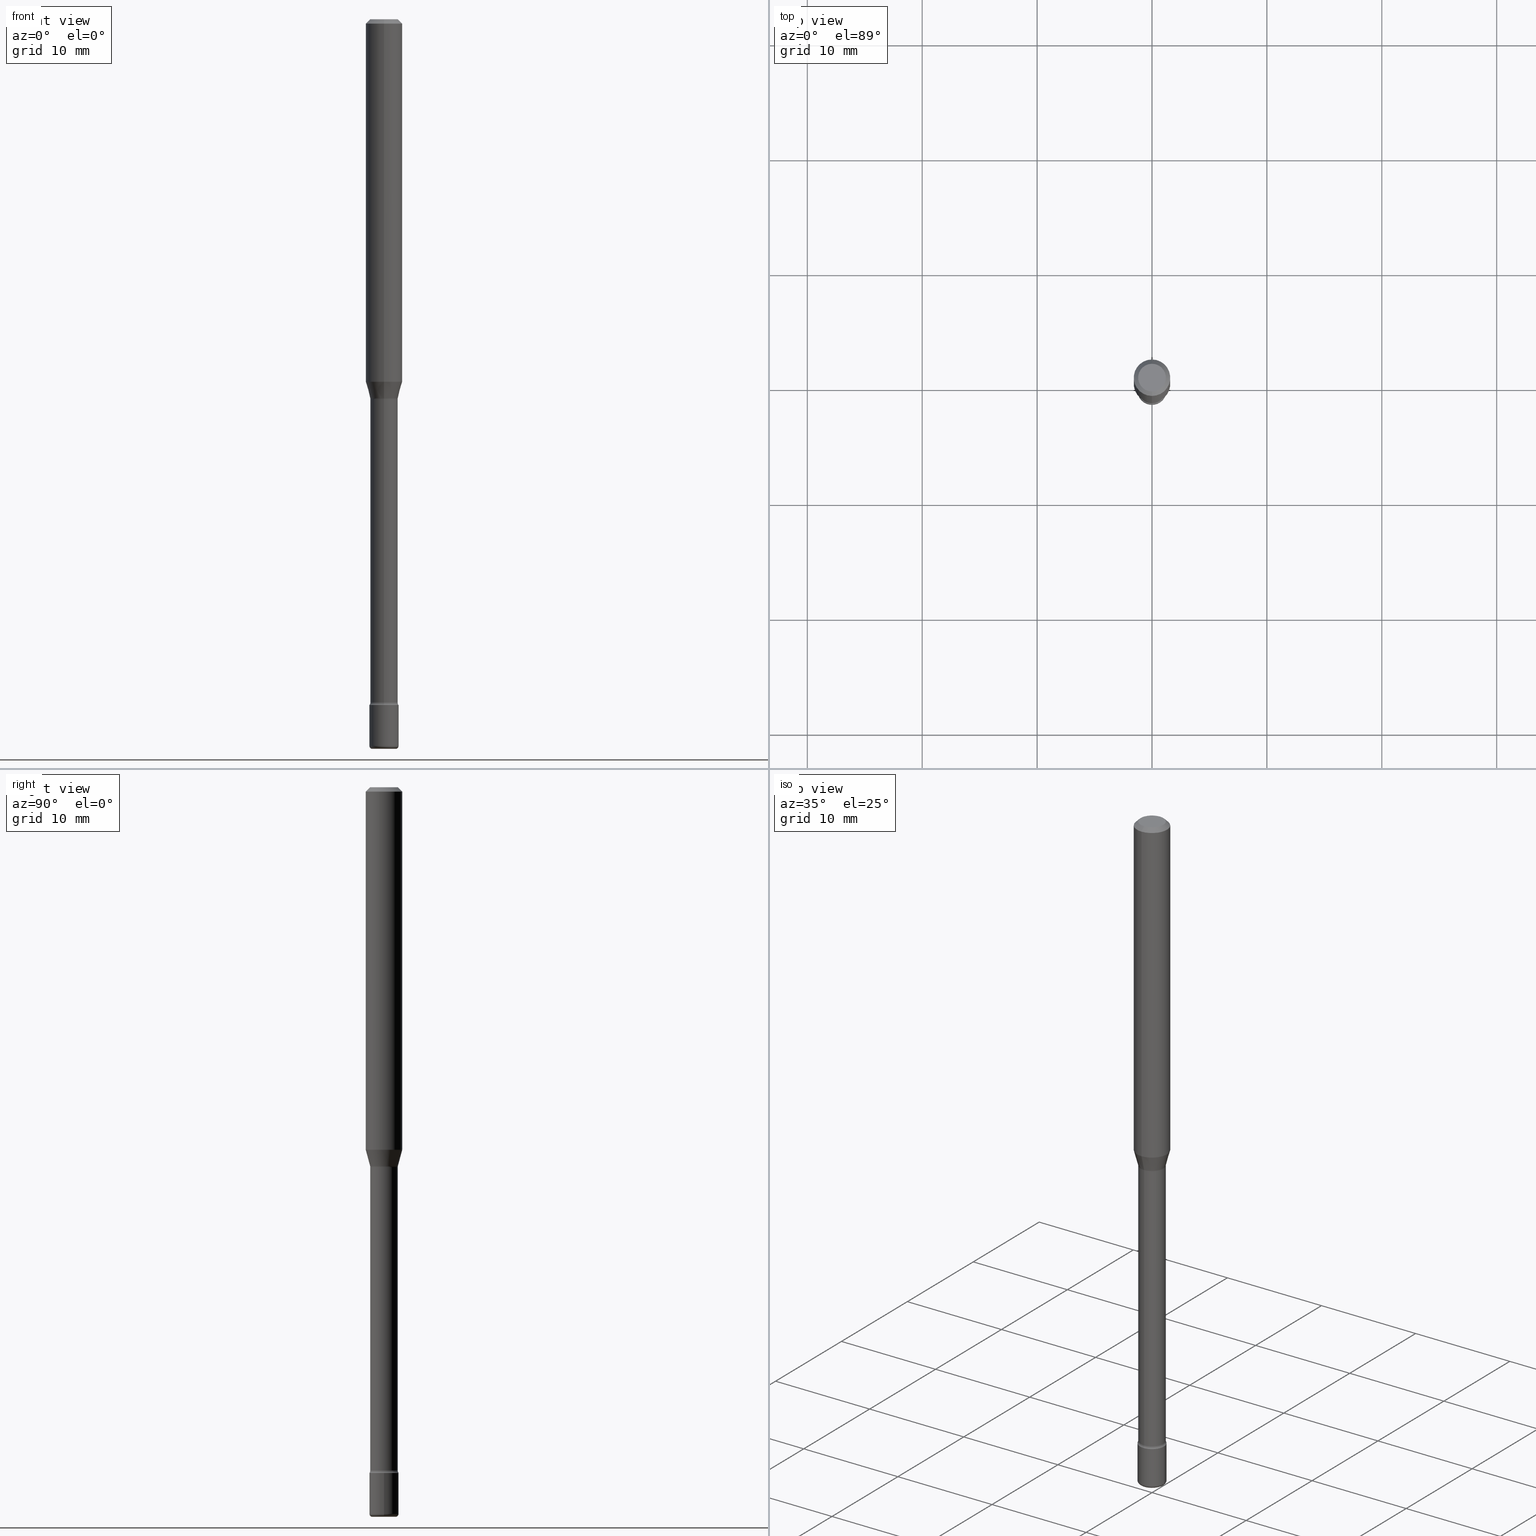
[diagram: canonical four-view strip — front | top / right | iso, engineering-drawing reading convention]
A machine part, canonical four-view strip (front | top / right | iso — engineering-drawing reading convention). The complete STEP part file that produces these views, byte-faithful:
ISO-10303-21;
HEADER;
FILE_DESCRIPTION (( 'STEP AP203' ),
    '1' );
FILE_NAME ('08964.STEP',
    '2024-03-06T20:12:48',
    ( '' ),
    ( '' ),
    'SwSTEP 2.0',
    'SolidWorks 2023',
    '' );
FILE_SCHEMA (( 'CONFIG_CONTROL_DESIGN' ));
ENDSEC;

DATA;
#1 = AXIS2_PLACEMENT_3D ( 'NONE', #22, #70, #242 ) ;
#2 = TOROIDAL_SURFACE ( 'NONE', #547, 0.04000000000000000083, 0.01000000000000009041 ) ;
#3 = DIRECTION ( 'NONE',  ( -6.982962677686265922E-15, -1.000000000000000000, 3.491458649801748196E-15 ) ) ;
#4 = DIRECTION ( 'NONE',  ( 1.000000000000000000, -6.982962677686259611E-15, 0.000000000000000000 ) ) ;
#5 = VERTEX_POINT ( 'NONE', #64 ) ;
#6 = DIRECTION ( 'NONE',  ( -6.982962677686265133E-15, -1.000000000000000000, 5.463695987328526437E-15 ) ) ;
#7 = EDGE_LOOP ( 'NONE', ( #314, #561 ) ) ;
#8 = AXIS2_PLACEMENT_3D ( 'NONE', #29, #160, #248 ) ;
#9 = CARTESIAN_POINT ( 'NONE',  ( 6.089217327400989947E-29, -8.693788533719431716E-15, -2.489999999999999769 ) ) ;
#10 = ORIENTED_EDGE ( 'NONE', *, *, #278, .T. ) ;
#11 = PERSON_AND_ORGANIZATION ( #479, #515 ) ;
#12 = EDGE_CURVE ( 'NONE', #382, #5, #451, .T. ) ;
#13 = DIRECTION ( 'NONE',  ( -2.445468806185136877E-29, 3.491481338843145188E-15, 1.000000000000000000 ) ) ;
#14 = ORIENTED_EDGE ( 'NONE', *, *, #40, .T. ) ;
#15 = DIRECTION ( 'NONE',  ( -2.445468806185136597E-29, 3.491481338843145583E-15, 1.000000000000000000 ) ) ;
#16 = APPROVAL ( #405, 'UNSPECIFIED' ) ;
#17 = EDGE_LOOP ( 'NONE', ( #354, #456, #417, #144 ) ) ;
#18 = ORIENTED_EDGE ( 'NONE', *, *, #568, .T. ) ;
#19 = CARTESIAN_POINT ( 'NONE',  ( 3.668226974787102280E-31, -5.237187974702632377E-17, -0.01500000000000002720 ) ) ;
#20 = VECTOR ( 'NONE', #24, 39.37007874015748143 ) ;
#21 = ORIENTED_EDGE ( 'NONE', *, *, #260, .T. ) ;
#22 = CARTESIAN_POINT ( 'NONE',  ( 3.183959357244965460E-29, -4.545791133514316808E-15, -1.301974787463811456 ) ) ;
#23 = CARTESIAN_POINT ( 'NONE',  ( -1.169113584055446105E-44, 1.669184350826100908E-30, 4.780733988912460139E-16 ) ) ;
#24 = DIRECTION ( 'NONE',  ( -2.445484649858063983E-29, 3.491458649801747802E-15, 1.000000000000000000 ) ) ;
#25 = DIRECTION ( 'NONE',  ( -2.445484649858063703E-29, 3.491458649801748196E-15, 1.000000000000000000 ) ) ;
#26 = PERSON_AND_ORGANIZATION ( #479, #515 ) ;
#27 = ORIENTED_EDGE ( 'NONE', *, *, #483, .T. ) ;
#28 = DIRECTION ( 'NONE',  ( -2.445484649858063703E-29, 3.491458649801748196E-15, 1.000000000000000000 ) ) ;
#29 = CARTESIAN_POINT ( 'NONE',  ( 3.183959357244965460E-29, -4.545791133514316808E-15, -1.301974787463811456 ) ) ;
#30 = AXIS2_PLACEMENT_3D ( 'NONE', #293, #28, #468 ) ;
#31 = LINE ( 'NONE', #165, #441 ) ;
#32 = CARTESIAN_POINT ( 'NONE',  ( -4.329436860164915685E-16, -0.06200000000000822215, -2.340999999999999748 ) ) ;
#33 = CYLINDRICAL_SURFACE ( 'NONE', #332, 0.06250000000000000000 ) ;
#34 = ADVANCED_FACE ( 'NONE', ( #239 ), #474, .T. ) ;
#35 = MECHANICAL_CONTEXT ( 'NONE', #262, 'mechanical' ) ;
#36 = DIRECTION ( 'NONE',  ( -6.982962677686265922E-15, -1.000000000000000000, 3.483106191921935554E-15 ) ) ;
#37 = AXIS2_PLACEMENT_3D ( 'NONE', #316, #447, #232 ) ;
#38 = AXIS2_PLACEMENT_3D ( 'NONE', #395, #134, #346 ) ;
#39 = CARTESIAN_POINT ( 'NONE',  ( 3.316907271900975110E-16, 0.04749999999999998668, 5.964728111673710049E-17 ) ) ;
#40 = EDGE_CURVE ( 'NONE', #193, #163, #79, .T. ) ;
#41 = DIRECTION ( 'NONE',  ( -6.982962677686265133E-15, -1.000000000000000000, 5.749913744050247464E-15 ) ) ;
#42 = DIRECTION ( 'NONE',  ( 6.982962677686265922E-15, 1.000000000000000000, -3.491458649801747802E-15 ) ) ;
#43 = PRODUCT ( '08964', '08964', '', ( #35 ) ) ;
#44 = AXIS2_PLACEMENT_3D ( 'NONE', #287, #169, #430 ) ;
#45 = DIRECTION ( 'NONE',  ( -2.445484649858063703E-29, 3.491458649801748196E-15, 1.000000000000000000 ) ) ;
#46 = EDGE_CURVE ( 'NONE', #504, #235, #93, .T. ) ;
#47 = EDGE_LOOP ( 'NONE', ( #458, #234 ) ) ;
#48 = DIMENSIONAL_EXPONENTS ( 1.000000000000000000, 0.000000000000000000, 0.000000000000000000, 0.000000000000000000, 0.000000000000000000, 0.000000000000000000, 0.000000000000000000 ) ;
#49 = EDGE_LOOP ( 'NONE', ( #69, #536 ) ) ;
#50 = PLANE ( 'NONE',  #159 ) ;
#51 = VERTEX_POINT ( 'NONE', #338 ) ;
#52 = EDGE_CURVE ( 'NONE', #235, #504, #135, .T. ) ;
#53 = AXIS2_PLACEMENT_3D ( 'NONE', #166, #117, #67 ) ;
#54 = CONICAL_SURFACE ( 'NONE', #188, 0.04751111260566398542, 0.2617993877991498519 ) ;
#55 = FACE_OUTER_BOUND ( 'NONE', #100, .T. ) ;
#56 = ORIENTED_EDGE ( 'NONE', *, *, #442, .F. ) ;
#57 = EDGE_CURVE ( 'NONE', #51, #317, #366, .T. ) ;
#58 = PERSON_AND_ORGANIZATION ( #479, #515 ) ;
#59 = ORIENTED_EDGE ( 'NONE', *, *, #272, .T. ) ;
#60 = ORIENTED_EDGE ( 'NONE', *, *, #568, .F. ) ;
#61 = PERSON_AND_ORGANIZATION_ROLE ( 'classification_officer' ) ;
#62 = DIRECTION ( 'NONE',  ( 6.982962677686265922E-15, 1.000000000000000000, -3.483106191921935554E-15 ) ) ;
#63 = ORIENTED_EDGE ( 'NONE', *, *, #355, .T. ) ;
#64 = CARTESIAN_POINT ( 'NONE',  ( 0.05000000000000004441, -9.042936667603745051E-15, -2.489999999999999769 ) ) ;
#65 = SECURITY_CLASSIFICATION_LEVEL ( 'unclassified' ) ;
#66 = AXIS2_PLACEMENT_3D ( 'NONE', #519, #158, #413 ) ;
#67 = DIRECTION ( 'NONE',  ( -6.982962677686265922E-15, -1.000000000000000000, 3.491458649801748196E-15 ) ) ;
#68 = LOCAL_TIME ( 15, 12, 48.00000000000000000, #132 ) ;
#69 = ORIENTED_EDGE ( 'NONE', *, *, #260, .F. ) ;
#70 = DIRECTION ( 'NONE',  ( -2.445484649858063703E-29, 3.491458649801748196E-15, 1.000000000000000000 ) ) ;
#71 = CALENDAR_DATE ( 2024, 6, 3 ) ;
#72 = FACE_OUTER_BOUND ( 'NONE', #113, .T. ) ;
#73 = ORIENTED_EDGE ( 'NONE', *, *, #518, .F. ) ;
#74 = CARTESIAN_POINT ( 'NONE',  ( 5.724879565317726717E-29, -8.173504699185892323E-15, -2.340999999999999748 ) ) ;
#75 = DIRECTION ( 'NONE',  ( -2.445484649858063703E-29, 3.491458649801748196E-15, 1.000000000000000000 ) ) ;
#76 = ORIENTED_EDGE ( 'NONE', *, *, #552, .F. ) ;
#77 = CARTESIAN_POINT ( 'NONE',  ( 3.037666613898282512E-29, -4.336926578101692093E-15, -1.242153212482682845 ) ) ;
#78 = DIRECTION ( 'NONE',  ( 1.000000000000000000, -6.982962677686259611E-15, 0.000000000000000000 ) ) ;
#79 = CIRCLE ( 'NONE', #1, 0.04700000000000001399 ) ;
#80 = CIRCLE ( 'NONE', #8, 0.04700000000000001399 ) ;
#81 = CC_DESIGN_SECURITY_CLASSIFICATION ( #320, ( #142 ) ) ;
#82 = LINE ( 'NONE', #420, #319 ) ;
#83 = PERSON_AND_ORGANIZATION ( #479, #515 ) ;
#84 = DIRECTION ( 'NONE',  ( 7.105427357601001859E-15, 1.000000000000000000, 0.000000000000000000 ) ) ;
#85 = AXIS2_PLACEMENT_3D ( 'NONE', #403, #275, #325 ) ;
#86 = CC_DESIGN_DATE_AND_TIME_ASSIGNMENT ( #529, #301, ( #208 ) ) ;
#87 = VECTOR ( 'NONE', #157, 39.37007874015748143 ) ;
#88 = CARTESIAN_POINT ( 'NONE',  ( 3.339550858072470388E-16, 0.04700000000000000705, 3.139748423505638775E-16 ) ) ;
#89 = ORIENTED_EDGE ( 'NONE', *, *, #57, .F. ) ;
#90 = EDGE_CURVE ( 'NONE', #504, #265, #121, .T. ) ;
#91 = PLANE ( 'NONE',  #380 ) ;
#92 = MANIFOLD_SOLID_BREP ( 'Body-Move/Copy2[2]', #251 ) ;
#93 = CIRCLE ( 'NONE', #393, 0.06250000000000000000 ) ;
#94 = AXIS2_PLACEMENT_3D ( 'NONE', #539, #544, #151 ) ;
#95 = CIRCLE ( 'NONE', #38, 0.05000000000000000278 ) ;
#96 = EDGE_CURVE ( 'NONE', #140, #508, #566, .T. ) ;
#97 = ORIENTED_EDGE ( 'NONE', *, *, #180, .F. ) ;
#98 = FACE_OUTER_BOUND ( 'NONE', #548, .T. ) ;
#99 = EDGE_CURVE ( 'NONE', #235, #103, #327, .T. ) ;
#100 = EDGE_LOOP ( 'NONE', ( #311, #73, #351, #467 ) ) ;
#101 = APPROVAL_DATE_TIME ( #494, #189 ) ;
#102 = CYLINDRICAL_SURFACE ( 'NONE', #305, 0.04700000000000000705 ) ;
#103 = VERTEX_POINT ( 'NONE', #370 ) ;
#104 = CC_DESIGN_PERSON_AND_ORGANIZATION_ASSIGNMENT ( #388, #343, ( #208 ) ) ;
#105 = AXIS2_PLACEMENT_3D ( 'NONE', #9, #15, #194 ) ;
#106 = CIRCLE ( 'NONE', #452, 0.01500000000000004455 ) ;
#107 = FACE_OUTER_BOUND ( 'NONE', #542, .T. ) ;
#108 = EDGE_LOOP ( 'NONE', ( #112, #496, #444, #182 ) ) ;
#109 = EDGE_LOOP ( 'NONE', ( #288, #18, #505, #556 ) ) ;
#110 = PERSON_AND_ORGANIZATION_ROLE ( 'creator' ) ;
#111 = DIRECTION ( 'NONE',  ( -6.982962677686265922E-15, -1.000000000000000000, 3.491458649801748196E-15 ) ) ;
#112 = ORIENTED_EDGE ( 'NONE', *, *, #386, .F. ) ;
#113 = EDGE_LOOP ( 'NONE', ( #517, #546, #186, #408 ) ) ;
#114 = CARTESIAN_POINT ( 'NONE',  ( 0.05000000000000000278, -8.554129280165706697E-15, -2.350000000000000089 ) ) ;
#115 = EDGE_LOOP ( 'NONE', ( #56, #10, #150, #229 ) ) ;
#116 = CARTESIAN_POINT ( 'NONE',  ( 5.746851694535070554E-29, -8.204981146281391784E-15, -2.350000000000000089 ) ) ;
#117 = DIRECTION ( 'NONE',  ( -2.445484649858063703E-29, 3.491458649801748196E-15, 1.000000000000000000 ) ) ;
#118 = APPROVAL_DATE_TIME ( #334, #461 ) ;
#119 =( GEOMETRIC_REPRESENTATION_CONTEXT ( 3 ) GLOBAL_UNCERTAINTY_ASSIGNED_CONTEXT ( ( #184 ) ) GLOBAL_UNIT_ASSIGNED_CONTEXT ( ( #174, #175, #302 ) ) REPRESENTATION_CONTEXT ( 'NONE', 'WORKASPACE' ) );
#120 = ORIENTED_EDGE ( 'NONE', *, *, #412, .F. ) ;
#121 = LINE ( 'NONE', #281, #20 ) ;
#122 = CARTESIAN_POINT ( 'NONE',  ( 3.908379845742356712E-16, 0.04751111260565944738, -1.298092501787273756 ) ) ;
#123 = DIRECTION ( 'NONE',  ( -2.445468806185136597E-29, 3.491481338843145583E-15, 1.000000000000000000 ) ) ;
#124 = ADVANCED_FACE ( 'NONE', ( #551 ), #509, .T. ) ;
#125 = DIRECTION ( 'NONE',  ( -2.445484649858063703E-29, 3.491458649801748196E-15, 1.000000000000000000 ) ) ;
#126 = DIRECTION ( 'NONE',  ( -6.982962677686265922E-15, -1.000000000000000000, 4.370956789862821150E-15 ) ) ;
#127 = CC_DESIGN_PERSON_AND_ORGANIZATION_ASSIGNMENT ( #481, #161, ( #43 ) ) ;
#128 = CARTESIAN_POINT ( 'NONE',  ( 3.174465287216627892E-29, -4.532236293607966914E-15, -1.298092501787273534 ) ) ;
#129 = AXIS2_PLACEMENT_3D ( 'NONE', #116, #283, #250 ) ;
#130 = AXIS2_PLACEMENT_3D ( 'NONE', #469, #125, #339 ) ;
#131 = DIRECTION ( 'NONE',  ( 1.000000000000000000, -6.982962677686261977E-15, 4.883557194083110659E-29 ) ) ;
#132 = COORDINATED_UNIVERSAL_TIME_OFFSET ( 5, 0, .BEHIND. ) ;
#133 = CARTESIAN_POINT ( 'NONE',  ( 6.113672015462842613E-29, -8.728703347107864943E-15, -2.500000000000000000 ) ) ;
#134 = DIRECTION ( 'NONE',  ( -2.445468806185136597E-29, 3.491481338843145583E-15, 1.000000000000000000 ) ) ;
#135 = CIRCLE ( 'NONE', #488, 0.06250000000000000000 ) ;
#136 = AXIS2_PLACEMENT_3D ( 'NONE', #177, #45, #530 ) ;
#137 = CARTESIAN_POINT ( 'NONE',  ( 4.440892098500930859E-16, 0.06249999999999569789, -1.242153212482683067 ) ) ;
#138 = ADVANCED_FACE ( 'NONE', ( #331 ), #341, .F. ) ;
#139 = DIRECTION ( 'NONE',  ( 1.839019923739597160E-15, 0.2588190451025245142, 0.9659258262890670910 ) ) ;
#140 = VERTEX_POINT ( 'NONE', #425 ) ;
#141 = VECTOR ( 'NONE', #192, 39.37007874015748143 ) ;
#142 = PRODUCT_DEFINITION_FORMATION_WITH_SPECIFIED_SOURCE ( 'ANY', '', #43, .NOT_KNOWN. ) ;
#143 = CARTESIAN_POINT ( 'NONE',  ( -0.04000000000000000083, -8.391501709321602173E-15, -2.500000000000000000 ) ) ;
#144 = ORIENTED_EDGE ( 'NONE', *, *, #164, .F. ) ;
#145 = CARTESIAN_POINT ( 'NONE',  ( 3.183938729182273846E-29, -4.545820674074168441E-15, -1.301974787463811456 ) ) ;
#146 = EDGE_CURVE ( 'NONE', #508, #140, #411, .T. ) ;
#147 = EDGE_LOOP ( 'NONE', ( #377, #453, #373, #14 ) ) ;
#148 = CALENDAR_DATE ( 2024, 6, 3 ) ;
#149 = FACE_OUTER_BOUND ( 'NONE', #49, .T. ) ;
#150 = ORIENTED_EDGE ( 'NONE', *, *, #164, .T. ) ;
#151 = DIRECTION ( 'NONE',  ( -6.982962677686263555E-15, -1.000000000000000000, 0.000000000000000000 ) ) ;
#152 = EDGE_CURVE ( 'NONE', #265, #103, #171, .T. ) ;
#153 = PERSON_AND_ORGANIZATION ( #479, #515 ) ;
#154 = CARTESIAN_POINT ( 'NONE',  ( 5.746888927166449379E-29, -8.204927827034108794E-15, -2.350000000000000089 ) ) ;
#155 = ORIENTED_EDGE ( 'NONE', *, *, #349, .T. ) ;
#156 = CARTESIAN_POINT ( 'NONE',  ( 3.037666613898282512E-29, -4.336926578101692093E-15, -1.242153212482682845 ) ) ;
#157 = DIRECTION ( 'NONE',  ( -4.851104656540965064E-15, -0.7071067811865501263, -0.7071067811865449082 ) ) ;
#158 = DIRECTION ( 'NONE',  ( -6.982962677686266711E-15, -1.000000000000000000, 3.491481338843145583E-15 ) ) ;
#159 = AXIS2_PLACEMENT_3D ( 'NONE', #185, #460, #279 ) ;
#160 = DIRECTION ( 'NONE',  ( -2.445484649858063703E-29, 3.491458649801748196E-15, 1.000000000000000000 ) ) ;
#161 = PERSON_AND_ORGANIZATION_ROLE ( 'design_owner' ) ;
#162 = AXIS2_PLACEMENT_3D ( 'NONE', #480, #570, #308 ) ;
#163 = VERTEX_POINT ( 'NONE', #378 ) ;
#164 = EDGE_CURVE ( 'NONE', #5, #224, #31, .T. ) ;
#165 = CARTESIAN_POINT ( 'NONE',  ( 0.05000000000000000971, -3.491481338843134341E-16, 2.438088387897968597E-30 ) ) ;
#166 = CARTESIAN_POINT ( 'NONE',  ( 3.183938729182273846E-29, -4.545820674074168441E-15, -1.301974787463811456 ) ) ;
#167 = CC_DESIGN_PERSON_AND_ORGANIZATION_ASSIGNMENT ( #324, #449, ( #142 ) ) ;
#168 = DIRECTION ( 'NONE',  ( 1.000000000000000000, -6.982962677686261977E-15, 4.883557194083110659E-29 ) ) ;
#169 = DIRECTION ( 'NONE',  ( -2.445468806185136597E-29, 3.491481338843145583E-15, 1.000000000000000000 ) ) ;
#170 = DIRECTION ( 'NONE',  ( -2.445468806185136877E-29, 3.491481338843145188E-15, 1.000000000000000000 ) ) ;
#171 = CIRCLE ( 'NONE', #537, 0.06250000000000000000 ) ;
#172 = CIRCLE ( 'NONE', #531, 0.04000000000000000083 ) ;
#173 = AXIS2_PLACEMENT_3D ( 'NONE', #32, #423, #563 ) ;
#174 =( CONVERSION_BASED_UNIT ( 'INCH', #485 ) LENGTH_UNIT ( ) NAMED_UNIT ( #48 ) );
#175 =( NAMED_UNIT ( * ) PLANE_ANGLE_UNIT ( ) SI_UNIT ( $, .RADIAN. ) );
#176 = ORIENTED_EDGE ( 'NONE', *, *, #96, .T. ) ;
#177 = CARTESIAN_POINT ( 'NONE',  ( 6.625640147717000210E-46, -9.457369277628037380E-32, -2.709026492660582810E-17 ) ) ;
#178 = PRODUCT_DEFINITION_SHAPE ( 'NONE', 'NONE',  #208 ) ;
#179 = CLOSED_SHELL ( 'NONE', ( #569, #34, #124, #371, #361, #303 ) ) ;
#180 = EDGE_CURVE ( 'NONE', #5, #462, #240, .T. ) ;
#181 = CYLINDRICAL_SURFACE ( 'NONE', #198, 0.06250000000000000000 ) ;
#182 = ORIENTED_EDGE ( 'NONE', *, *, #278, .F. ) ;
#183 = EDGE_CURVE ( 'NONE', #317, #265, #363, .T. ) ;
#184 = UNCERTAINTY_MEASURE_WITH_UNIT (LENGTH_MEASURE( 1.000000000000000082E-05 ), #174, 'distance_accuracy_value', 'NONE');
#185 = CARTESIAN_POINT ( 'NONE',  ( 3.491481338843707252E-16, 0.04999999999999180100, -2.350000000000000533 ) ) ;
#186 = ORIENTED_EDGE ( 'NONE', *, *, #52, .F. ) ;
#187 = VECTOR ( 'NONE', #459, 39.37007874015748143 ) ;
#188 = AXIS2_PLACEMENT_3D ( 'NONE', #128, #25, #297 ) ;
#189 = APPROVAL ( #295, 'UNSPECIFIED' ) ;
#190 = DIRECTION ( 'NONE',  ( -6.982962677686265133E-15, -1.000000000000000000, 5.463695987328526437E-15 ) ) ;
#191 = ORIENTED_EDGE ( 'NONE', *, *, #340, .F. ) ;
#192 = DIRECTION ( 'NONE',  ( 4.937700262164548831E-15, 0.7071067811865452413, -0.7071067811865497932 ) ) ;
#193 = VERTEX_POINT ( 'NONE', #540 ) ;
#194 = DIRECTION ( 'NONE',  ( 1.000000000000000000, -6.982962677686273021E-15, 0.000000000000000000 ) ) ;
#195 = EDGE_LOOP ( 'NONE', ( #226, #470, #97, #369 ) ) ;
#196 = EDGE_LOOP ( 'NONE', ( #401, #330, #76, #335 ) ) ;
#197 = AXIS2_PLACEMENT_3D ( 'NONE', #145, #541, #111 ) ;
#198 = AXIS2_PLACEMENT_3D ( 'NONE', #350, #391, #487 ) ;
#199 = CARTESIAN_POINT ( 'NONE',  ( 5.746888927166449379E-29, -8.204927827034108794E-15, -2.350000000000000089 ) ) ;
#200 = DIRECTION ( 'NONE',  ( -2.445484649858063703E-29, 3.491458649801748196E-15, 1.000000000000000000 ) ) ;
#201 = EDGE_CURVE ( 'NONE', #448, #193, #463, .T. ) ;
#202 = DIRECTION ( 'NONE',  ( -2.445484649858063703E-29, 3.491458649801748196E-15, 1.000000000000000000 ) ) ;
#203 = DIRECTION ( 'NONE',  ( -2.445484649858063703E-29, 3.491458649801748196E-15, 1.000000000000000000 ) ) ;
#204 = CARTESIAN_POINT ( 'NONE',  ( -0.05000000000000004441, -8.338517165839381307E-15, -2.489999999999999769 ) ) ;
#205 = APPROVAL_ROLE ( '' ) ;
#206 = EDGE_LOOP ( 'NONE', ( #554, #323, #490, #446 ) ) ;
#207 = DIRECTION ( 'NONE',  ( -2.445484649858063703E-29, 3.491458649801748196E-15, 1.000000000000000000 ) ) ;
#208 = PRODUCT_DEFINITION ( 'UNKNOWN', '', #142, #227 ) ;
#209 = LINE ( 'NONE', #300, #87 ) ;
#210 = AXIS2_PLACEMENT_3D ( 'NONE', #482, #219, #36 ) ;
#211 = DIRECTION ( 'NONE',  ( -2.445484649858063703E-29, 3.491458649801748196E-15, 1.000000000000000000 ) ) ;
#212 = CARTESIAN_POINT ( 'NONE',  ( 2.793185071075117657E-16, 0.03999999999999127864, -2.500000000000000000 ) ) ;
#213 = CARTESIAN_POINT ( 'NONE',  ( -0.05000000000000000278, -8.094113472120361341E-15, -2.350000000000000089 ) ) ;
#214 = CALENDAR_DATE ( 2024, 6, 3 ) ;
#215 = CONICAL_SURFACE ( 'NONE', #221, 0.06250000000000000000, 0.7853981633974485010 ) ;
#216 = LOCAL_TIME ( 15, 12, 48.00000000000000000, #376 ) ;
#217 = CC_DESIGN_DATE_AND_TIME_ASSIGNMENT ( #315, #274, ( #320 ) ) ;
#218 = CARTESIAN_POINT ( 'NONE',  ( 4.405364961713196496E-16, 0.06199999999999188105, -2.341000000000000192 ) ) ;
#219 = DIRECTION ( 'NONE',  ( -2.445484649858063703E-29, 3.491458649801748196E-15, 1.000000000000000000 ) ) ;
#220 = ADVANCED_FACE ( 'NONE', ( #55 ), #215, .T. ) ;
#221 = AXIS2_PLACEMENT_3D ( 'NONE', #457, #406, #360 ) ;
#222 = TOROIDAL_SURFACE ( 'NONE', #285, 0.06200000000000004813, 0.01500000000000004281 ) ;
#223 = DIRECTION ( 'NONE',  ( -2.445484649858063983E-29, 3.491458649801747802E-15, 1.000000000000000000 ) ) ;
#224 = VERTEX_POINT ( 'NONE', #114 ) ;
#225 = CARTESIAN_POINT ( 'NONE',  ( -3.491481338842560938E-16, -0.05000000000000824618, -2.349999999999999645 ) ) ;
#226 = ORIENTED_EDGE ( 'NONE', *, *, #396, .T. ) ;
#227 = DESIGN_CONTEXT ( 'detailed design', #502, 'design' ) ;
#228 = DIRECTION ( 'NONE',  ( -2.445484649858063703E-29, 3.491458649801748196E-15, 1.000000000000000000 ) ) ;
#229 = ORIENTED_EDGE ( 'NONE', *, *, #402, .F. ) ;
#230 = AXIS2_PLACEMENT_3D ( 'NONE', #356, #228, #399 ) ;
#231 = APPROVAL_PERSON_ORGANIZATION ( #58, #16, #543 ) ;
#232 = DIRECTION ( 'NONE',  ( 1.000000000000000000, -6.982962677686273021E-15, 0.000000000000000000 ) ) ;
#233 = DIRECTION ( 'NONE',  ( -2.445484649858063703E-29, 3.491458649801748196E-15, 1.000000000000000000 ) ) ;
#234 = ORIENTED_EDGE ( 'NONE', *, *, #527, .F. ) ;
#235 = VERTEX_POINT ( 'NONE', #266 ) ;
#236 = DIRECTION ( 'NONE',  ( 2.445484649858063703E-29, -3.491458649801748196E-15, -1.000000000000000000 ) ) ;
#237 = ADVANCED_FACE ( 'NONE', ( #503 ), #545, .F. ) ;
#238 = EDGE_LOOP ( 'NONE', ( #493, #267 ) ) ;
#239 = FACE_OUTER_BOUND ( 'NONE', #195, .T. ) ;
#240 = CIRCLE ( 'NONE', #105, 0.05000000000000000971 ) ;
#241 = CIRCLE ( 'NONE', #136, 0.04749999999999998668 ) ;
#242 = DIRECTION ( 'NONE',  ( -6.982962677686265922E-15, -1.000000000000000000, 5.812442539711196222E-15 ) ) ;
#243 = APPROVAL_DATE_TIME ( #428, #16 ) ;
#244 = DIRECTION ( 'NONE',  ( 1.000000000000000000, -7.105427357601001070E-15, 4.926315230681463443E-29 ) ) ;
#245 = ORIENTED_EDGE ( 'NONE', *, *, #533, .F. ) ;
#246 = DIRECTION ( 'NONE',  ( -2.445484649858063703E-29, 3.491458649801748196E-15, 1.000000000000000000 ) ) ;
#247 = ADVANCED_FACE ( 'NONE', ( #149 ), #50, .F. ) ;
#248 = DIRECTION ( 'NONE',  ( -6.982962677686265922E-15, -1.000000000000000000, 5.812442539711196222E-15 ) ) ;
#249 = ORIENTED_EDGE ( 'NONE', *, *, #340, .T. ) ;
#250 = DIRECTION ( 'NONE',  ( 1.000000000000000000, -6.982962677686265922E-15, 4.876176775795935793E-29 ) ) ;
#251 = CLOSED_SHELL ( 'NONE', ( #318, #309, #472, #296, #549, #422, #445, #383, #220, #512, #247, #138, #307, #237 ) ) ;
#252 = FACE_OUTER_BOUND ( 'NONE', #108, .T. ) ;
#253 = CIRCLE ( 'NONE', #394, 0.01000000000000009041 ) ;
#254 = CARTESIAN_POINT ( 'NONE',  ( -3.317683261006693414E-16, -0.04751111260566851652, -1.298092501787273090 ) ) ;
#255 = DIRECTION ( 'NONE',  ( 1.000000000000000000, -7.105427357601001070E-15, 4.926315230681463443E-29 ) ) ;
#256 = ORIENTED_EDGE ( 'NONE', *, *, #552, .T. ) ;
#257 = APPLICATION_PROTOCOL_DEFINITION ( 'international standard', 'config_control_design', 1994, #262 ) ;
#258 = AXIS2_PLACEMENT_3D ( 'NONE', #19, #236, #62 ) ;
#259 = CIRCLE ( 'NONE', #173, 0.01500000000000003587 ) ;
#260 = EDGE_CURVE ( 'NONE', #276, #438, #414, .T. ) ;
#261 =( LENGTH_UNIT ( ) NAMED_UNIT ( * ) SI_UNIT ( $, .METRE. ) );
#262 = APPLICATION_CONTEXT ( 'configuration controlled 3d designs of mechanical parts and assemblies' ) ;
#263 = CARTESIAN_POINT ( 'NONE',  ( 3.174465287216627892E-29, -4.532236293607966914E-15, -1.298092501787273534 ) ) ;
#264 = VECTOR ( 'NONE', #139, 39.37007874015748854 ) ;
#265 = VERTEX_POINT ( 'NONE', #397 ) ;
#266 = CARTESIAN_POINT ( 'NONE',  ( -4.364351673553610517E-16, -0.06250000000000430211, -1.242153212482682623 ) ) ;
#267 = ORIENTED_EDGE ( 'NONE', *, *, #57, .T. ) ;
#268 = CARTESIAN_POINT ( 'NONE',  ( -1.169113584055446105E-44, 1.669184350826100908E-30, 4.780733988912460139E-16 ) ) ;
#269 = ORIENTED_EDGE ( 'NONE', *, *, #533, .T. ) ;
#270 = AXIS2_PLACEMENT_3D ( 'NONE', #384, #522, #562 ) ;
#271 = VECTOR ( 'NONE', #478, 39.37007874015748143 ) ;
#272 = EDGE_CURVE ( 'NONE', #438, #276, #426, .T. ) ;
#273 = LOCAL_TIME ( 15, 12, 48.00000000000000000, #359 ) ;
#274 = DATE_TIME_ROLE ( 'classification_date' ) ;
#275 = DIRECTION ( 'NONE',  ( -2.445468806185136597E-29, 3.491481338843145583E-15, 1.000000000000000000 ) ) ;
#276 = VERTEX_POINT ( 'NONE', #225 ) ;
#277 = VERTEX_POINT ( 'NONE', #143 ) ;
#278 = EDGE_CURVE ( 'NONE', #462, #5, #499, .T. ) ;
#279 = DIRECTION ( 'NONE',  ( -6.982962677686265922E-15, -1.000000000000000000, 3.491458649801747802E-15 ) ) ;
#280 = ORIENTED_EDGE ( 'NONE', *, *, #46, .T. ) ;
#281 = CARTESIAN_POINT ( 'NONE',  ( 4.440892098500625669E-16, 0.06250000000000000000, 2.598572332786367763E-16 ) ) ;
#282 = DIRECTION ( 'NONE',  ( -2.445484649858063703E-29, 3.491458649801748196E-15, 1.000000000000000000 ) ) ;
#283 = DIRECTION ( 'NONE',  ( -2.438088387897960049E-29, 3.491481338843145188E-15, 1.000000000000000000 ) ) ;
#284 = AXIS2_PLACEMENT_3D ( 'NONE', #199, #282, #6 ) ;
#285 = AXIS2_PLACEMENT_3D ( 'NONE', #516, #75, #3 ) ;
#286 = MANIFOLD_SOLID_BREP ( 'Body-Move/Copy2[1]', #179 ) ;
#287 = CARTESIAN_POINT ( 'NONE',  ( 5.746851694535070554E-29, -8.204981146281391784E-15, -2.350000000000000089 ) ) ;
#288 = ORIENTED_EDGE ( 'NONE', *, *, #146, .T. ) ;
#289 = CARTESIAN_POINT ( 'NONE',  ( 6.089217327400989947E-29, -8.693788533719431716E-15, -2.489999999999999769 ) ) ;
#290 = DIRECTION ( 'NONE',  ( 1.000000000000000000, 0.000000000000000000, 0.000000000000000000 ) ) ;
#291 = DIRECTION ( 'NONE',  ( -6.982962677686265133E-15, -1.000000000000000000, 5.749913744050247464E-15 ) ) ;
#292 = ORIENTED_EDGE ( 'NONE', *, *, #99, .T. ) ;
#293 = CARTESIAN_POINT ( 'NONE',  ( 5.724879565317726717E-29, -8.173504699185892323E-15, -2.340999999999999748 ) ) ;
#294 = CARTESIAN_POINT ( 'NONE',  ( -0.04000000000000000083, -8.409571439415391389E-15, -2.489999999999999769 ) ) ;
#295 = APPROVAL_STATUS ( 'not_yet_approved' ) ;
#296 = ADVANCED_FACE ( 'NONE', ( #353 ), #513, .T. ) ;
#297 = DIRECTION ( 'NONE',  ( -6.982962677686265133E-15, -1.000000000000000000, 5.749913744050247464E-15 ) ) ;
#298 = AXIS2_PLACEMENT_3D ( 'NONE', #212, #328, #560 ) ;
#299 = EDGE_CURVE ( 'NONE', #448, #235, #410, .T. ) ;
#300 = CARTESIAN_POINT ( 'NONE',  ( -4.287811248607203282E-16, -0.06250000000000005551, -0.01499999999999981036 ) ) ;
#301 = DATE_TIME_ROLE ( 'creation_date' ) ;
#302 =( NAMED_UNIT ( * ) SI_UNIT ( $, .STERADIAN. ) SOLID_ANGLE_UNIT ( ) );
#303 = ADVANCED_FACE ( 'NONE', ( #550 ), #491, .T. ) ;
#304 = FACE_OUTER_BOUND ( 'NONE', #238, .T. ) ;
#305 = AXIS2_PLACEMENT_3D ( 'NONE', #268, #450, #454 ) ;
#306 = CC_DESIGN_APPROVAL ( #189, ( #142 ) ) ;
#307 = ADVANCED_FACE ( 'NONE', ( #98 ), #507, .T. ) ;
#308 = DIRECTION ( 'NONE',  ( 1.000000000000000000, -6.982962677686267499E-15, 4.876176775795936353E-29 ) ) ;
#309 = ADVANCED_FACE ( 'NONE', ( #495 ), #102, .T. ) ;
#310 = CALENDAR_DATE ( 2024, 6, 3 ) ;
#311 = ORIENTED_EDGE ( 'NONE', *, *, #355, .F. ) ;
#312 = CARTESIAN_POINT ( 'NONE',  ( -3.317683261006693414E-16, -0.04751111260566851652, -1.298092501787273090 ) ) ;
#313 = ORIENTED_EDGE ( 'NONE', *, *, #152, .F. ) ;
#314 = ORIENTED_EDGE ( 'NONE', *, *, #506, .T. ) ;
#315 = DATE_AND_TIME ( #148, #273 ) ;
#316 = CARTESIAN_POINT ( 'NONE',  ( 6.089217327400989947E-29, -8.693788533719431716E-15, -2.489999999999999769 ) ) ;
#317 = VERTEX_POINT ( 'NONE', #498 ) ;
#318 = ADVANCED_FACE ( 'NONE', ( #107 ), #557, .F. ) ;
#319 = VECTOR ( 'NONE', #170, 39.37007874015748143 ) ;
#320 = SECURITY_CLASSIFICATION ( '', '', #65 ) ;
#321 = COORDINATED_UNIVERSAL_TIME_OFFSET ( 5, 0, .BEHIND. ) ;
#322 = CARTESIAN_POINT ( 'NONE',  ( 4.364351673553919652E-16, 0.06249999999999995143, -0.01500000000000024578 ) ) ;
#323 = ORIENTED_EDGE ( 'NONE', *, *, #412, .T. ) ;
#324 = PERSON_AND_ORGANIZATION ( #479, #515 ) ;
#325 = DIRECTION ( 'NONE',  ( 1.000000000000000000, -6.982962677686267499E-15, 4.876176775795936353E-29 ) ) ;
#326 = ORIENTED_EDGE ( 'NONE', *, *, #90, .F. ) ;
#327 = LINE ( 'NONE', #471, #187 ) ;
#328 = DIRECTION ( 'NONE',  ( 2.438088387897960049E-29, -3.491481338843145188E-15, -1.000000000000000000 ) ) ;
#329 = APPLICATION_PROTOCOL_DEFINITION ( 'international standard', 'config_control_design', 1994, #502 ) ;
#330 = ORIENTED_EDGE ( 'NONE', *, *, #90, .T. ) ;
#331 = FACE_OUTER_BOUND ( 'NONE', #424, .T. ) ;
#332 = AXIS2_PLACEMENT_3D ( 'NONE', #23, #202, #372 ) ;
#333 = LINE ( 'NONE', #436, #367 ) ;
#334 = DATE_AND_TIME ( #214, #68 ) ;
#335 = ORIENTED_EDGE ( 'NONE', *, *, #99, .F. ) ;
#336 = CARTESIAN_POINT ( 'NONE',  ( 5.724842475279404612E-29, -8.173557814231803142E-15, -2.341000000000000192 ) ) ;
#337 = CARTESIAN_POINT ( 'NONE',  ( 4.405364961712940116E-16, 0.06199999999999547540, -1.301974787463811678 ) ) ;
#338 = CARTESIAN_POINT ( 'NONE',  ( -3.773273898774339776E-16, -0.04749999999999998668, 1.387540209389771689E-16 ) ) ;
#339 = DIRECTION ( 'NONE',  ( -6.982962677686265133E-15, -1.000000000000000000, 5.749913744050247464E-15 ) ) ;
#340 = EDGE_CURVE ( 'NONE', #508, #276, #259, .T. ) ;
#341 = TOROIDAL_SURFACE ( 'NONE', #389, 0.06200000000000004813, 0.01500000000000004281 ) ;
#342 = DIRECTION ( 'NONE',  ( -1.000000000000000000, 7.105427357600958471E-15, 0.000000000000000000 ) ) ;
#343 = PERSON_AND_ORGANIZATION_ROLE ( 'creator' ) ;
#344 = AXIS2_PLACEMENT_3D ( 'NONE', #263, #439, #41 ) ;
#345 = CARTESIAN_POINT ( 'NONE',  ( 3.375867592983783552E-16, 0.04751111260565944738, -1.298092501787273756 ) ) ;
#346 = DIRECTION ( 'NONE',  ( 1.000000000000000000, -6.982962677686274599E-15, 0.000000000000000000 ) ) ;
#347 = AXIS2_PLACEMENT_3D ( 'NONE', #74, #203, #374 ) ;
#348 = AXIS2_PLACEMENT_3D ( 'NONE', #358, #409, #290 ) ;
#349 = EDGE_CURVE ( 'NONE', #163, #193, #80, .T. ) ;
#350 = CARTESIAN_POINT ( 'NONE',  ( -1.169113584055446105E-44, 1.669184350826100908E-30, 4.780733988912460139E-16 ) ) ;
#351 = ORIENTED_EDGE ( 'NONE', *, *, #183, .T. ) ;
#352 = CC_DESIGN_PERSON_AND_ORGANIZATION_ASSIGNMENT ( #11, #61, ( #320 ) ) ;
#353 = FACE_OUTER_BOUND ( 'NONE', #501, .T. ) ;
#354 = ORIENTED_EDGE ( 'NONE', *, *, #180, .T. ) ;
#355 = EDGE_CURVE ( 'NONE', #51, #103, #209, .T. ) ;
#356 = CARTESIAN_POINT ( 'NONE',  ( -1.169113584055446105E-44, 1.669184350826100908E-30, 4.780733988912460139E-16 ) ) ;
#357 = EDGE_LOOP ( 'NONE', ( #326, #280, #292, #313 ) ) ;
#358 = CARTESIAN_POINT ( 'NONE',  ( 0.000000000000000000, 0.000000000000000000, 0.000000000000000000 ) ) ;
#359 = COORDINATED_UNIVERSAL_TIME_OFFSET ( 5, 0, .BEHIND. ) ;
#360 = DIRECTION ( 'NONE',  ( 6.982962677686265922E-15, 1.000000000000000000, -3.483106191921935554E-15 ) ) ;
#361 = ADVANCED_FACE ( 'NONE', ( #252 ), #2, .T. ) ;
#362 = VERTEX_POINT ( 'NONE', #122 ) ;
#363 = LINE ( 'NONE', #322, #141 ) ;
#364 = ORIENTED_EDGE ( 'NONE', *, *, #349, .F. ) ;
#365 = VERTEX_POINT ( 'NONE', #213 ) ;
#366 = CIRCLE ( 'NONE', #270, 0.04749999999999998668 ) ;
#367 = VECTOR ( 'NONE', #223, 39.37007874015748143 ) ;
#368 = DIRECTION ( 'NONE',  ( -1.807323732225327378E-15, -0.2588190451025177974, 0.9659258262890690894 ) ) ;
#369 = ORIENTED_EDGE ( 'NONE', *, *, #12, .F. ) ;
#370 = CARTESIAN_POINT ( 'NONE',  ( -4.364351673553912750E-16, -0.06250000000000005551, -0.01499999999999981036 ) ) ;
#371 = ADVANCED_FACE ( 'NONE', ( #477 ), #528, .T. ) ;
#372 = DIRECTION ( 'NONE',  ( -6.982962677686265922E-15, -1.000000000000000000, 3.491458649801747407E-15 ) ) ;
#373 = ORIENTED_EDGE ( 'NONE', *, *, #201, .T. ) ;
#374 = DIRECTION ( 'NONE',  ( -6.982962677686265922E-15, -1.000000000000000000, 5.812442539711197800E-15 ) ) ;
#375 = FACE_OUTER_BOUND ( 'NONE', #398, .T. ) ;
#376 = COORDINATED_UNIVERSAL_TIME_OFFSET ( 5, 0, .BEHIND. ) ;
#377 = ORIENTED_EDGE ( 'NONE', *, *, #429, .F. ) ;
#378 = CARTESIAN_POINT ( 'NONE',  ( 3.339550858073045764E-16, 0.04699999999999546901, -1.301974787463811678 ) ) ;
#379 = AXIS2_PLACEMENT_3D ( 'NONE', #154, #233, #190 ) ;
#380 = AXIS2_PLACEMENT_3D ( 'NONE', #39, #534, #42 ) ;
#381 = FACE_OUTER_BOUND ( 'NONE', #206, .T. ) ;
#382 = VERTEX_POINT ( 'NONE', #565 ) ;
#383 = ADVANCED_FACE ( 'NONE', ( #385 ), #33, .T. ) ;
#384 = CARTESIAN_POINT ( 'NONE',  ( 6.625640147717000210E-46, -9.457369277628037380E-32, -2.709026492660582810E-17 ) ) ;
#385 = FACE_OUTER_BOUND ( 'NONE', #357, .T. ) ;
#386 = EDGE_CURVE ( 'NONE', #277, #462, #253, .T. ) ;
#387 = DIRECTION ( 'NONE',  ( -2.445468806185136597E-29, 3.491481338843145583E-15, 1.000000000000000000 ) ) ;
#388 = PERSON_AND_ORGANIZATION ( #479, #515 ) ;
#389 = AXIS2_PLACEMENT_3D ( 'NONE', #336, #211, #418 ) ;
#390 = CC_DESIGN_APPROVAL ( #461, ( #208 ) ) ;
#391 = DIRECTION ( 'NONE',  ( -2.445484649858063703E-29, 3.491458649801748196E-15, 1.000000000000000000 ) ) ;
#392 = LINE ( 'NONE', #88, #271 ) ;
#393 = AXIS2_PLACEMENT_3D ( 'NONE', #77, #207, #514 ) ;
#394 = AXIS2_PLACEMENT_3D ( 'NONE', #294, #431, #342 ) ;
#395 = CARTESIAN_POINT ( 'NONE',  ( 5.746851694535070554E-29, -8.204981146281391784E-15, -2.350000000000000089 ) ) ;
#396 = EDGE_CURVE ( 'NONE', #382, #277, #172, .T. ) ;
#397 = CARTESIAN_POINT ( 'NONE',  ( 4.440892098500930859E-16, 0.06249999999999993755, -0.01500000000000024578 ) ) ;
#398 = EDGE_LOOP ( 'NONE', ( #455, #269, #59, #191 ) ) ;
#399 = DIRECTION ( 'NONE',  ( -6.982962677686265922E-15, -1.000000000000000000, 3.491458649801746619E-15 ) ) ;
#400 = AXIS2_PLACEMENT_3D ( 'NONE', #510, #465, #291 ) ;
#401 = ORIENTED_EDGE ( 'NONE', *, *, #52, .T. ) ;
#402 = EDGE_CURVE ( 'NONE', #365, #224, #526, .T. ) ;
#403 = CARTESIAN_POINT ( 'NONE',  ( 0.000000000000000000, 0.000000000000000000, 0.000000000000000000 ) ) ;
#404 = ORIENTED_EDGE ( 'NONE', *, *, #201, .F. ) ;
#405 = APPROVAL_STATUS ( 'not_yet_approved' ) ;
#406 = DIRECTION ( 'NONE',  ( 2.445484649858063703E-29, -3.491458649801748196E-15, -1.000000000000000000 ) ) ;
#407 = ORIENTED_EDGE ( 'NONE', *, *, #183, .F. ) ;
#408 = ORIENTED_EDGE ( 'NONE', *, *, #299, .F. ) ;
#409 = DIRECTION ( 'NONE',  ( 0.000000000000000000, 0.000000000000000000, 1.000000000000000000 ) ) ;
#410 = LINE ( 'NONE', #312, #434 ) ;
#411 = CIRCLE ( 'NONE', #347, 0.04700000000000000705 ) ;
#412 = EDGE_CURVE ( 'NONE', #362, #448, #489, .T. ) ;
#413 = DIRECTION ( 'NONE',  ( 1.000000000000000000, -6.982962677686269077E-15, 0.000000000000000000 ) ) ;
#414 = CIRCLE ( 'NONE', #379, 0.05000000000000000278 ) ;
#415 = CONICAL_SURFACE ( 'NONE', #130, 0.04751111260566398542, 0.2617993877991498519 ) ;
#416 = DIRECTION ( 'NONE',  ( -2.445468806185136597E-29, 3.491481338843145583E-15, 1.000000000000000000 ) ) ;
#417 = ORIENTED_EDGE ( 'NONE', *, *, #506, .F. ) ;
#418 = DIRECTION ( 'NONE',  ( -6.982962677686265922E-15, -1.000000000000000000, 3.491458649801748196E-15 ) ) ;
#419 = SHAPE_DEFINITION_REPRESENTATION ( #178, #497 ) ;
#420 = CARTESIAN_POINT ( 'NONE',  ( -0.05000000000000000971, 3.552713678800501620E-16, -2.459467545127453311E-30 ) ) ;
#421 = DIRECTION ( 'NONE',  ( -6.982962677686265922E-15, -1.000000000000000000, 3.483106191921935554E-15 ) ) ;
#422 = ADVANCED_FACE ( 'NONE', ( #72 ), #415, .T. ) ;
#423 = DIRECTION ( 'NONE',  ( -1.000000000000000000, 6.982962677686265922E-15, -4.883557194083112340E-29 ) ) ;
#424 = EDGE_LOOP ( 'NONE', ( #245, #511, #249, #21 ) ) ;
#425 = CARTESIAN_POINT ( 'NONE',  ( 3.446132268437060393E-16, 0.04699999999999183303, -2.341000000000000192 ) ) ;
#426 = CIRCLE ( 'NONE', #284, 0.05000000000000000278 ) ;
#427 = CIRCLE ( 'NONE', #210, 0.06250000000000000000 ) ;
#428 = DATE_AND_TIME ( #71, #476 ) ;
#429 = EDGE_CURVE ( 'NONE', #362, #163, #106, .T. ) ;
#430 = DIRECTION ( 'NONE',  ( 1.000000000000000000, -6.982962677686274599E-15, 0.000000000000000000 ) ) ;
#431 = DIRECTION ( 'NONE',  ( 7.105427357601001859E-15, 1.000000000000000000, -3.491481338843145583E-15 ) ) ;
#432 = APPROVAL_STATUS ( 'not_yet_approved' ) ;
#433 = FACE_OUTER_BOUND ( 'NONE', #17, .T. ) ;
#434 = VECTOR ( 'NONE', #368, 39.37007874015748143 ) ;
#435 = CIRCLE ( 'NONE', #344, 0.04751111260566398542 ) ;
#436 = CARTESIAN_POINT ( 'NONE',  ( -3.281992458512545531E-16, -0.04700000000000000705, 6.421719554319281504E-16 ) ) ;
#437 = CARTESIAN_POINT ( 'NONE',  ( -3.281992458511972621E-16, -0.04700000000000817413, -2.340999999999999304 ) ) ;
#438 = VERTEX_POINT ( 'NONE', #523 ) ;
#439 = DIRECTION ( 'NONE',  ( -2.445484649858063703E-29, 3.491458649801748196E-15, 1.000000000000000000 ) ) ;
#440 = FACE_OUTER_BOUND ( 'NONE', #196, .T. ) ;
#441 = VECTOR ( 'NONE', #13, 39.37007874015748143 ) ;
#442 = EDGE_CURVE ( 'NONE', #462, #365, #82, .T. ) ;
#443 = AXIS2_PLACEMENT_3D ( 'NONE', #133, #535, #4 ) ;
#444 = ORIENTED_EDGE ( 'NONE', *, *, #12, .T. ) ;
#445 = ADVANCED_FACE ( 'NONE', ( #381 ), #54, .T. ) ;
#446 = ORIENTED_EDGE ( 'NONE', *, *, #46, .F. ) ;
#447 = DIRECTION ( 'NONE',  ( -2.445468806185136597E-29, 3.491481338843145583E-15, 1.000000000000000000 ) ) ;
#448 = VERTEX_POINT ( 'NONE', #254 ) ;
#449 = PERSON_AND_ORGANIZATION_ROLE ( 'design_supplier' ) ;
#450 = DIRECTION ( 'NONE',  ( -2.445484649858063703E-29, 3.491458649801748196E-15, 1.000000000000000000 ) ) ;
#451 = CIRCLE ( 'NONE', #66, 0.01000000000000009041 ) ;
#452 = AXIS2_PLACEMENT_3D ( 'NONE', #337, #244, #520 ) ;
#453 = ORIENTED_EDGE ( 'NONE', *, *, #492, .F. ) ;
#454 = DIRECTION ( 'NONE',  ( -6.982962677686265922E-15, -1.000000000000000000, 3.491458649801746619E-15 ) ) ;
#455 = ORIENTED_EDGE ( 'NONE', *, *, #96, .F. ) ;
#456 = ORIENTED_EDGE ( 'NONE', *, *, #442, .T. ) ;
#457 = CARTESIAN_POINT ( 'NONE',  ( 3.668226974787102280E-31, -5.237187974702632377E-17, -0.01500000000000002720 ) ) ;
#458 = ORIENTED_EDGE ( 'NONE', *, *, #396, .F. ) ;
#459 = DIRECTION ( 'NONE',  ( -2.445484649858063983E-29, 3.491458649801747802E-15, 1.000000000000000000 ) ) ;
#460 = DIRECTION ( 'NONE',  ( -2.445484649858063703E-29, 3.491458649801747802E-15, 1.000000000000000000 ) ) ;
#461 = APPROVAL ( #432, 'UNSPECIFIED' ) ;
#462 = VERTEX_POINT ( 'NONE', #204 ) ;
#463 = CIRCLE ( 'NONE', #94, 0.01500000000000004455 ) ;
#464 = APPROVAL_PERSON_ORGANIZATION ( #26, #189, #205 ) ;
#465 = DIRECTION ( 'NONE',  ( -2.445484649858063703E-29, 3.491458649801748196E-15, 1.000000000000000000 ) ) ;
#466 = CALENDAR_DATE ( 2024, 6, 3 ) ;
#467 = ORIENTED_EDGE ( 'NONE', *, *, #152, .T. ) ;
#468 = DIRECTION ( 'NONE',  ( -6.982962677686265922E-15, -1.000000000000000000, 5.812442539711197800E-15 ) ) ;
#469 = CARTESIAN_POINT ( 'NONE',  ( 3.174465287216627892E-29, -4.532236293607966914E-15, -1.298092501787273534 ) ) ;
#470 = ORIENTED_EDGE ( 'NONE', *, *, #386, .T. ) ;
#471 = CARTESIAN_POINT ( 'NONE',  ( -4.364351673553916201E-16, -0.06250000000000000000, 6.962895645038553008E-16 ) ) ;
#472 = ADVANCED_FACE ( 'NONE', ( #375 ), #222, .F. ) ;
#473 = CARTESIAN_POINT ( 'NONE',  ( 6.089217327400989947E-29, -8.693788533719431716E-15, -2.489999999999999769 ) ) ;
#474 = TOROIDAL_SURFACE ( 'NONE', #525, 0.04000000000000000083, 0.01000000000000009041 ) ;
#475 = AXIS2_PLACEMENT_3D ( 'NONE', #218, #255, #84 ) ;
#476 = LOCAL_TIME ( 15, 12, 48.00000000000000000, #321 ) ;
#477 = FACE_OUTER_BOUND ( 'NONE', #47, .T. ) ;
#478 = DIRECTION ( 'NONE',  ( -2.445484649858063983E-29, 3.491458649801747802E-15, 1.000000000000000000 ) ) ;
#479 = PERSON ( 'UNSPECIFIED', 'UNSPECIFIED', 'UNSPECIFIED', ('UNSPECIFIED'), ('UNSPECIFIED'), ('UNSPECIFIED') ) ;
#480 = CARTESIAN_POINT ( 'NONE',  ( 0.000000000000000000, 0.000000000000000000, 0.000000000000000000 ) ) ;
#481 = PERSON_AND_ORGANIZATION ( #479, #515 ) ;
#482 = CARTESIAN_POINT ( 'NONE',  ( 3.668226974787102280E-31, -5.237187974702632377E-17, -0.01500000000000002720 ) ) ;
#483 = EDGE_CURVE ( 'NONE', #508, #193, #333, .T. ) ;
#484 = ORIENTED_EDGE ( 'NONE', *, *, #429, .T. ) ;
#485 = LENGTH_MEASURE_WITH_UNIT ( LENGTH_MEASURE( 0.02539999999999999897 ), #261 );
#486 = PRODUCT_RELATED_PRODUCT_CATEGORY ( 'detail', '', ( #43 ) ) ;
#487 = DIRECTION ( 'NONE',  ( -6.982962677686265922E-15, -1.000000000000000000, 3.491458649801747407E-15 ) ) ;
#488 = AXIS2_PLACEMENT_3D ( 'NONE', #156, #200, #126 ) ;
#489 = CIRCLE ( 'NONE', #400, 0.04751111260566398542 ) ;
#490 = ORIENTED_EDGE ( 'NONE', *, *, #299, .T. ) ;
#491 = CYLINDRICAL_SURFACE ( 'NONE', #85, 0.05000000000000000971 ) ;
#492 = EDGE_CURVE ( 'NONE', #448, #362, #435, .T. ) ;
#493 = ORIENTED_EDGE ( 'NONE', *, *, #518, .T. ) ;
#494 = DATE_AND_TIME ( #310, #216 ) ;
#495 = FACE_OUTER_BOUND ( 'NONE', #109, .T. ) ;
#496 = ORIENTED_EDGE ( 'NONE', *, *, #527, .T. ) ;
#497 = ADVANCED_BREP_SHAPE_REPRESENTATION ( '08964', ( #286, #92, #348 ), #119 ) ;
#498 = CARTESIAN_POINT ( 'NONE',  ( 3.840629472727447874E-16, 0.04749999999999998668, -1.929345507921888190E-16 ) ) ;
#499 = CIRCLE ( 'NONE', #37, 0.05000000000000000971 ) ;
#500 = LOCAL_TIME ( 15, 12, 48.00000000000000000, #521 ) ;
#501 = EDGE_LOOP ( 'NONE', ( #89, #63, #256, #407 ) ) ;
#502 = APPLICATION_CONTEXT ( 'configuration controlled 3d designs of mechanical parts and assemblies' ) ;
#503 = FACE_OUTER_BOUND ( 'NONE', #147, .T. ) ;
#504 = VERTEX_POINT ( 'NONE', #137 ) ;
#505 = ORIENTED_EDGE ( 'NONE', *, *, #40, .F. ) ;
#506 = EDGE_CURVE ( 'NONE', #224, #365, #95, .T. ) ;
#507 = CYLINDRICAL_SURFACE ( 'NONE', #230, 0.04700000000000000705 ) ;
#508 = VERTEX_POINT ( 'NONE', #437 ) ;
#509 = PLANE ( 'NONE',  #129 ) ;
#510 = CARTESIAN_POINT ( 'NONE',  ( 3.174465287216627892E-29, -4.532236293607966914E-15, -1.298092501787273534 ) ) ;
#511 = ORIENTED_EDGE ( 'NONE', *, *, #146, .F. ) ;
#512 = ADVANCED_FACE ( 'NONE', ( #304 ), #91, .F. ) ;
#513 = CONICAL_SURFACE ( 'NONE', #258, 0.06250000000000000000, 0.7853981633974485010 ) ;
#514 = DIRECTION ( 'NONE',  ( -6.982962677686265922E-15, -1.000000000000000000, 4.370956789862821150E-15 ) ) ;
#515 = ORGANIZATION ( 'UNSPECIFIED', 'UNSPECIFIED', '' ) ;
#516 = CARTESIAN_POINT ( 'NONE',  ( 5.724842475279404612E-29, -8.173557814231803142E-15, -2.341000000000000192 ) ) ;
#517 = ORIENTED_EDGE ( 'NONE', *, *, #492, .T. ) ;
#518 = EDGE_CURVE ( 'NONE', #317, #51, #241, .T. ) ;
#519 = CARTESIAN_POINT ( 'NONE',  ( 0.04000000000000000083, -8.973107040826881753E-15, -2.489999999999999769 ) ) ;
#520 = DIRECTION ( 'NONE',  ( 7.105427357600993970E-15, 1.000000000000000000, 0.000000000000000000 ) ) ;
#521 = COORDINATED_UNIVERSAL_TIME_OFFSET ( 5, 0, .BEHIND. ) ;
#522 = DIRECTION ( 'NONE',  ( -2.445484649858063703E-29, 3.491458649801748196E-15, 1.000000000000000000 ) ) ;
#523 = CARTESIAN_POINT ( 'NONE',  ( 3.552713678801077488E-16, 0.04999999999999183570, -2.350000000000000533 ) ) ;
#524 = APPROVAL_ROLE ( '' ) ;
#525 = AXIS2_PLACEMENT_3D ( 'NONE', #289, #123, #168 ) ;
#526 = CIRCLE ( 'NONE', #44, 0.05000000000000000278 ) ;
#527 = EDGE_CURVE ( 'NONE', #277, #382, #538, .T. ) ;
#528 = PLANE ( 'NONE',  #298 ) ;
#529 = DATE_AND_TIME ( #466, #500 ) ;
#530 = DIRECTION ( 'NONE',  ( -6.982962677686265133E-15, -1.000000000000000000, 3.491458649801748196E-15 ) ) ;
#531 = AXIS2_PLACEMENT_3D ( 'NONE', #553, #387, #78 ) ;
#532 = CYLINDRICAL_SURFACE ( 'NONE', #162, 0.05000000000000000971 ) ;
#533 = EDGE_CURVE ( 'NONE', #140, #438, #567, .T. ) ;
#534 = DIRECTION ( 'NONE',  ( 2.445484649858063703E-29, -3.491458649801747802E-15, -1.000000000000000000 ) ) ;
#535 = DIRECTION ( 'NONE',  ( -2.445468806185136597E-29, 3.491481338843145583E-15, 1.000000000000000000 ) ) ;
#536 = ORIENTED_EDGE ( 'NONE', *, *, #272, .F. ) ;
#537 = AXIS2_PLACEMENT_3D ( 'NONE', #555, #246, #421 ) ;
#538 = CIRCLE ( 'NONE', #443, 0.04000000000000000083 ) ;
#539 = CARTESIAN_POINT ( 'NONE',  ( -4.329436860165167134E-16, -0.06200000000000455841, -1.301974787463811012 ) ) ;
#540 = CARTESIAN_POINT ( 'NONE',  ( -3.281992458512227522E-16, -0.04700000000000455203, -1.301974787463811012 ) ) ;
#541 = DIRECTION ( 'NONE',  ( -2.445484649858063703E-29, 3.491458649801748196E-15, 1.000000000000000000 ) ) ;
#542 = EDGE_LOOP ( 'NONE', ( #120, #484, #155, #404 ) ) ;
#543 = APPROVAL_ROLE ( '' ) ;
#544 = DIRECTION ( 'NONE',  ( -1.000000000000000000, 6.982962677686265922E-15, -4.883557194083112340E-29 ) ) ;
#545 = TOROIDAL_SURFACE ( 'NONE', #197, 0.06200000000000001343, 0.01500000000000003587 ) ;
#546 = ORIENTED_EDGE ( 'NONE', *, *, #564, .T. ) ;
#547 = AXIS2_PLACEMENT_3D ( 'NONE', #473, #416, #131 ) ;
#548 = EDGE_LOOP ( 'NONE', ( #60, #176, #27, #364 ) ) ;
#549 = ADVANCED_FACE ( 'NONE', ( #440 ), #181, .T. ) ;
#550 = FACE_OUTER_BOUND ( 'NONE', #115, .T. ) ;
#551 = FACE_OUTER_BOUND ( 'NONE', #7, .T. ) ;
#552 = EDGE_CURVE ( 'NONE', #103, #265, #427, .T. ) ;
#553 = CARTESIAN_POINT ( 'NONE',  ( 6.113672015462842613E-29, -8.728703347107864943E-15, -2.500000000000000000 ) ) ;
#554 = ORIENTED_EDGE ( 'NONE', *, *, #564, .F. ) ;
#555 = CARTESIAN_POINT ( 'NONE',  ( 3.668226974787102280E-31, -5.237187974702632377E-17, -0.01500000000000002720 ) ) ;
#556 = ORIENTED_EDGE ( 'NONE', *, *, #483, .F. ) ;
#557 = TOROIDAL_SURFACE ( 'NONE', #53, 0.06200000000000001343, 0.01500000000000003587 ) ;
#558 = APPROVAL_PERSON_ORGANIZATION ( #83, #461, #524 ) ;
#559 = CC_DESIGN_APPROVAL ( #16, ( #320 ) ) ;
#560 = DIRECTION ( 'NONE',  ( -1.000000000000000000, 6.982962677686265922E-15, -4.876176775795935793E-29 ) ) ;
#561 = ORIENTED_EDGE ( 'NONE', *, *, #402, .T. ) ;
#562 = DIRECTION ( 'NONE',  ( -6.982962677686265133E-15, -1.000000000000000000, 3.491458649801748196E-15 ) ) ;
#563 = DIRECTION ( 'NONE',  ( -6.982962677686272233E-15, -1.000000000000000000, 0.000000000000000000 ) ) ;
#564 = EDGE_CURVE ( 'NONE', #362, #504, #571, .T. ) ;
#565 = CARTESIAN_POINT ( 'NONE',  ( 0.04000000000000000083, -9.008021854215314980E-15, -2.500000000000000000 ) ) ;
#566 = CIRCLE ( 'NONE', #30, 0.04700000000000000705 ) ;
#567 = CIRCLE ( 'NONE', #475, 0.01500000000000003587 ) ;
#568 = EDGE_CURVE ( 'NONE', #140, #163, #392, .T. ) ;
#569 = ADVANCED_FACE ( 'NONE', ( #433 ), #532, .T. ) ;
#570 = DIRECTION ( 'NONE',  ( -2.445468806185136597E-29, 3.491481338843145583E-15, 1.000000000000000000 ) ) ;
#571 = LINE ( 'NONE', #345, #264 ) ;
#572 = CC_DESIGN_PERSON_AND_ORGANIZATION_ASSIGNMENT ( #153, #110, ( #142 ) ) ;
ENDSEC;
END-ISO-10303-21;
